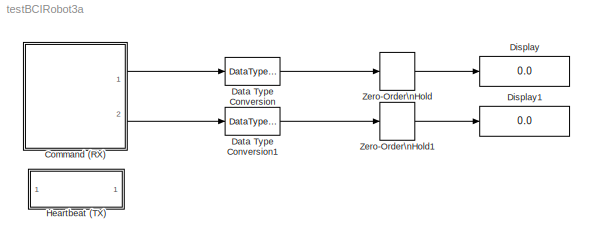
MODEL testBCIRobot3a
KIND model
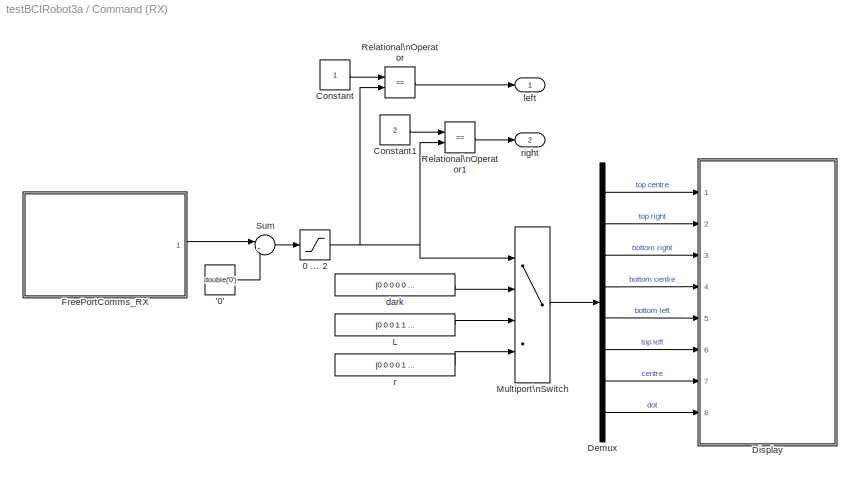
BLOCK [SubSystem] Command (RX)
  Ports = [0, 2]
  RequestExecContextInheritance = off
  SID = 1
BLOCK [Constant] Command (RX)/'0'
  SID = 2
  Value = double('0')
BLOCK [Saturate] Command (RX)/0 ... 2
  InputPortMap = u0
  LowerLimit = 0
  Ports = [1, 1]
  SID = 3
  UpperLimit = 2
BLOCK [Constant] Command (RX)/Constant
  SID = 4
BLOCK [Constant] Command (RX)/Constant1
  SID = 5
  Value = 2
BLOCK [Demux] Command (RX)/Demux
  Outputs = 8
  Ports = [1, 8]
  SID = 6
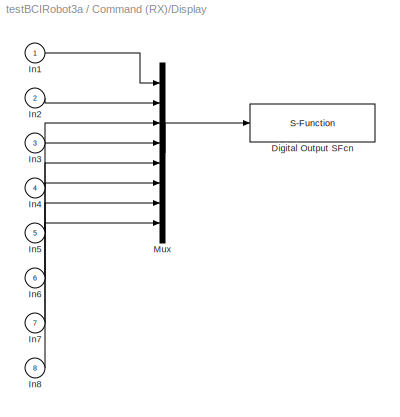
BLOCK [SubSystem] Command (RX)/Display
  Ports = [8]
  RequestExecContextInheritance = off
  SID = 7
  ShowPortLabels = none
  Tag = mcTarget_digOut
BLOCK [S-Function] Command (RX)/Display/Digital Output SFcn
  EnableBusSupport = off
  FunctionName = digOut_sfcn_9S12
  Parameters = sampletime, port, pins, Von, Voff
  Ports = [1]
  SFcnIsStateOwnerBlock = off
  SFunctionDeploymentMode = off
  SID = 7:9
  Tag = mcTarget_digOut
BLOCK [Inport] Command (RX)/Display/In1
  IconDisplay = Port number
  SID = 7:1
BLOCK [Inport] Command (RX)/Display/In2
  IconDisplay = Port number
  Port = 2
  SID = 7:2
BLOCK [Inport] Command (RX)/Display/In3
  IconDisplay = Port number
  Port = 3
  SID = 7:3
BLOCK [Inport] Command (RX)/Display/In4
  IconDisplay = Port number
  Port = 4
  SID = 7:4
BLOCK [Inport] Command (RX)/Display/In5
  IconDisplay = Port number
  Port = 5
  SID = 7:5
BLOCK [Inport] Command (RX)/Display/In6
  IconDisplay = Port number
  Port = 6
  SID = 7:6
BLOCK [Inport] Command (RX)/Display/In7
  IconDisplay = Port number
  Port = 7
  SID = 7:7
BLOCK [Inport] Command (RX)/Display/In8
  IconDisplay = Port number
  Port = 8
  SID = 7:8
BLOCK [Mux] Command (RX)/Display/Mux
  DisplayOption = bar
  Inputs = 8
  Ports = [8, 1]
  SID = 7:10
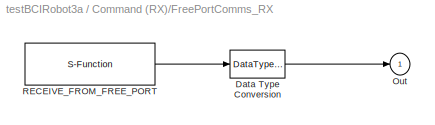
BLOCK [SubSystem] Command (RX)/FreePortComms_RX
  Ports = [0, 1]
  RequestExecContextInheritance = off
  SID = 32
  ShowPortLabels = none
  Tag = mcTarget_freePortCommsRX
BLOCK [DataTypeConversion] Command (RX)/FreePortComms_RX/Data Type Conversion
  OutDataTypeStr = double
  SID = 32:153
BLOCK [Outport] Command (RX)/FreePortComms_RX/Out
  IconDisplay = Port number
  SID = 32:155
BLOCK [S-Function] Command (RX)/FreePortComms_RX/RECEIVE_FROM_FREE_PORT
  EnableBusSupport = off
  FunctionName = freePortComms_rxd
  Parameters = sampletime, channel, buf_size, data_type, port, baudrate, format
  Ports = [0, 1]
  SFcnIsStateOwnerBlock = off
  SFunctionDeploymentMode = off
  SID = 32:154
  Tag = mcTarget_freePortCommsRX
BLOCK [Constant] Command (RX)/L
  OutDataTypeStr = double
  SID = 9
  Value = [0 0 0 1 1 1 0 0 ]
BLOCK [MultiPortSwitch] Command (RX)/Multiport\nSwitch
  DataPortOrder = Zero-based contiguous
  InputSameDT = off
  Ports = [4, 1]
  SID = 10
  zeroidx = on
BLOCK [RelationalOperator] Command (RX)/Relational\nOperator
  InputSameDT = off
  Operator = ==
  OutDataTypeStr = uint(8)
  Ports = [2, 1]
  SID = 11
BLOCK [RelationalOperator] Command (RX)/Relational\nOperator1
  InputSameDT = off
  Operator = ==
  OutDataTypeStr = uint(8)
  Ports = [2, 1]
  SID = 12
BLOCK [Sum] Command (RX)/Sum
  IconShape = round
  InputSameDT = off
  Inputs = |+-
  OutDataTypeStr = Inherit: Inherit via internal rule
  Ports = [2, 1]
  SID = 13
BLOCK [Constant] Command (RX)/dark
  OutDataTypeStr = double
  SID = 14
  Value = [0 0 0 0 0 0 0 0]
BLOCK [Outport] Command (RX)/left
  IconDisplay = Port number
  SID = 16
BLOCK [Constant] Command (RX)/r
  OutDataTypeStr = double
  SID = 15
  Value = [0 0 0 0 1 0 1 0]
BLOCK [Outport] Command (RX)/right
  IconDisplay = Port number
  Port = 2
  SID = 17
BLOCK [DataTypeConversion] Data Type Conversion
  OutDataTypeStr = double
  SID = 18
BLOCK [DataTypeConversion] Data Type Conversion1
  OutDataTypeStr = double
  SID = 19
BLOCK [Display] Display
  Decimation = 1
  Ports = [1]
  SID = 20
BLOCK [Display] Display1
  Decimation = 1
  Ports = [1]
  SID = 21
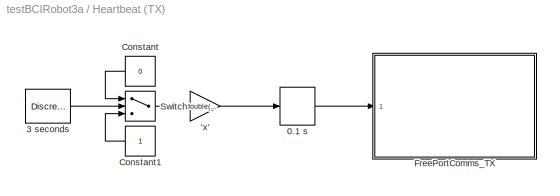
BLOCK [SubSystem] Heartbeat (TX)
  Ports = []
  RequestExecContextInheritance = off
  SID = 33
BLOCK [Gain] Heartbeat (TX)/'x'
  Gain = double('x')
  SID = 34
BLOCK [ZeroOrderHold] Heartbeat (TX)/0.1 s
  SID = 35
  SampleTime = 0.1
BLOCK [DiscretePulseGenerator] Heartbeat (TX)/3 seconds
  Period = 3
  Ports = [0, 1]
  PulseType = Time based
  PulseWidth = 0.2
  SID = 36
BLOCK [Constant] Heartbeat (TX)/Constant
  SID = 37
  Value = 0
BLOCK [Constant] Heartbeat (TX)/Constant1
  SID = 38
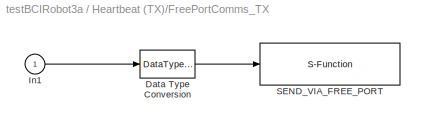
BLOCK [SubSystem] Heartbeat (TX)/FreePortComms_TX
  Ports = [1]
  RequestExecContextInheritance = off
  SID = 39
  ShowPortLabels = none
  Tag = mcTarget_freePortCommsTX
BLOCK [DataTypeConversion] Heartbeat (TX)/FreePortComms_TX/Data Type Conversion
  OutDataTypeStr = uint8
  SID = 39:158
BLOCK [Inport] Heartbeat (TX)/FreePortComms_TX/In1
  IconDisplay = Port number
  SID = 39:157
BLOCK [S-Function] Heartbeat (TX)/FreePortComms_TX/SEND_VIA_FREE_PORT
  EnableBusSupport = off
  FunctionName = freePortComms_txd
  Parameters = sampletime, channel, buf_size, data_type, port, baudrate, format
  Ports = [1]
  SFcnIsStateOwnerBlock = off
  SFunctionDeploymentMode = off
  SID = 39:159
  Tag = mcTarget_freePortCommsTX
BLOCK [Switch] Heartbeat (TX)/Switch
  Criteria = u2 > Threshold
  InputSameDT = off
  SID = 40
  SaturateOnIntegerOverflow = off
  Threshold = 0.5
BLOCK [ZeroOrderHold] Zero-Order\nHold
  SID = 30
BLOCK [ZeroOrderHold] Zero-Order\nHold1
  SID = 31
LINE Command (RX)/'0':1 -> Command (RX)/Sum:2
NET Command (RX)/0 ... 2:1 -> Command (RX)/Multiport\nSwitch:1, Command (RX)/Relational\nOperator1:2, Command (RX)/Relational\nOperator:2
LINE Command (RX)/Constant1:1 -> Command (RX)/Relational\nOperator1:1
LINE Command (RX)/Constant:1 -> Command (RX)/Relational\nOperator:1
LINE Command (RX)/Demux:1 -> Command (RX)/Display:1
LINE Command (RX)/Demux:2 -> Command (RX)/Display:2
LINE Command (RX)/Demux:3 -> Command (RX)/Display:3
LINE Command (RX)/Demux:4 -> Command (RX)/Display:4
LINE Command (RX)/Demux:5 -> Command (RX)/Display:5
LINE Command (RX)/Demux:6 -> Command (RX)/Display:6
LINE Command (RX)/Demux:7 -> Command (RX)/Display:7
LINE Command (RX)/Demux:8 -> Command (RX)/Display:8
LINE Command (RX)/Display/In1:1 -> Command (RX)/Display/Mux:1
LINE Command (RX)/Display/In2:1 -> Command (RX)/Display/Mux:2
LINE Command (RX)/Display/In3:1 -> Command (RX)/Display/Mux:3
LINE Command (RX)/Display/In4:1 -> Command (RX)/Display/Mux:4
LINE Command (RX)/Display/In5:1 -> Command (RX)/Display/Mux:5
LINE Command (RX)/Display/In6:1 -> Command (RX)/Display/Mux:6
LINE Command (RX)/Display/In7:1 -> Command (RX)/Display/Mux:7
LINE Command (RX)/Display/In8:1 -> Command (RX)/Display/Mux:8
LINE Command (RX)/Display/Mux:1 -> Command (RX)/Display/Digital Output SFcn:1
LINE Command (RX)/FreePortComms_RX/Data Type Conversion:1 -> Command (RX)/FreePortComms_RX/Out:1
LINE Command (RX)/FreePortComms_RX/RECEIVE_FROM_FREE_PORT:1 -> Command (RX)/FreePortComms_RX/Data Type Conversion:1
LINE Command (RX)/FreePortComms_RX:1 -> Command (RX)/Sum:1
LINE Command (RX)/L:1 -> Command (RX)/Multiport\nSwitch:3
LINE Command (RX)/Multiport\nSwitch:1 -> Command (RX)/Demux:1
LINE Command (RX)/Relational\nOperator1:1 -> Command (RX)/right:1
LINE Command (RX)/Relational\nOperator:1 -> Command (RX)/left:1
LINE Command (RX)/Sum:1 -> Command (RX)/0 ... 2:1
LINE Command (RX)/dark:1 -> Command (RX)/Multiport\nSwitch:2
LINE Command (RX)/r:1 -> Command (RX)/Multiport\nSwitch:4
LINE Command (RX):1 -> Data Type Conversion:1
LINE Command (RX):2 -> Data Type Conversion1:1
LINE Data Type Conversion1:1 -> Zero-Order\nHold1:1
LINE Data Type Conversion:1 -> Zero-Order\nHold:1
LINE Heartbeat (TX)/'x':1 -> Heartbeat (TX)/0.1 s:1
LINE Heartbeat (TX)/0.1 s:1 -> Heartbeat (TX)/FreePortComms_TX:1
LINE Heartbeat (TX)/3 seconds:1 -> Heartbeat (TX)/Switch:2
LINE Heartbeat (TX)/Constant1:1 -> Heartbeat (TX)/Switch:3
LINE Heartbeat (TX)/Constant:1 -> Heartbeat (TX)/Switch:1
LINE Heartbeat (TX)/FreePortComms_TX/Data Type Conversion:1 -> Heartbeat (TX)/FreePortComms_TX/SEND_VIA_FREE_PORT:1
LINE Heartbeat (TX)/FreePortComms_TX/In1:1 -> Heartbeat (TX)/FreePortComms_TX/Data Type Conversion:1
LINE Heartbeat (TX)/Switch:1 -> Heartbeat (TX)/'x':1
LINE Zero-Order\nHold1:1 -> Display1:1
LINE Zero-Order\nHold:1 -> Display:1
note: NET lines group one-source signal fan-out (src -> all destinations, sorted); 1:1 wires keep LINE
